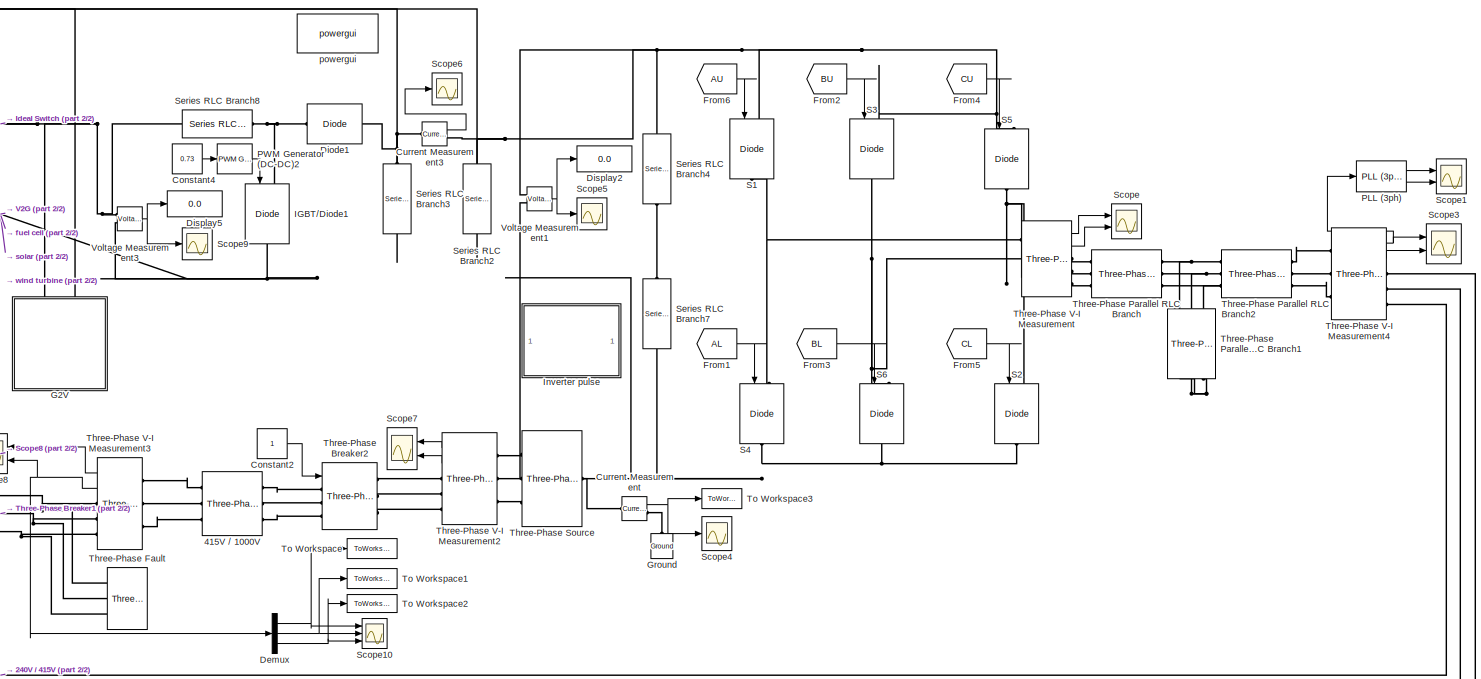
[diagram: root canvas - part 1/2, right side, full height]
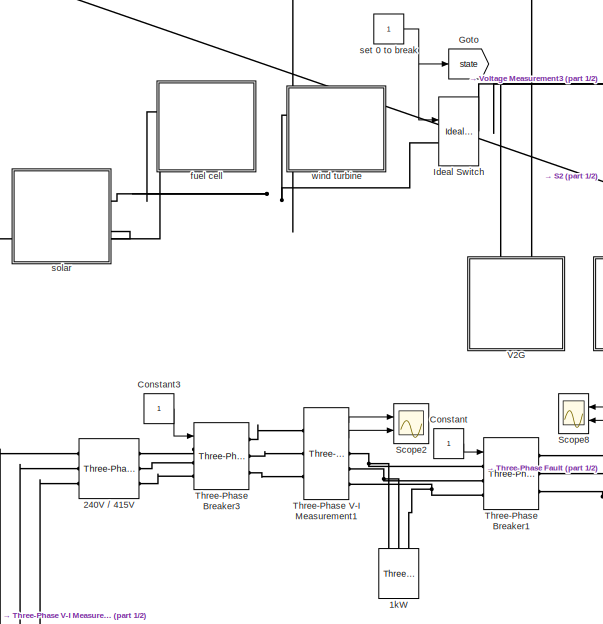
[diagram: root canvas - part 2/2, left side, full height]
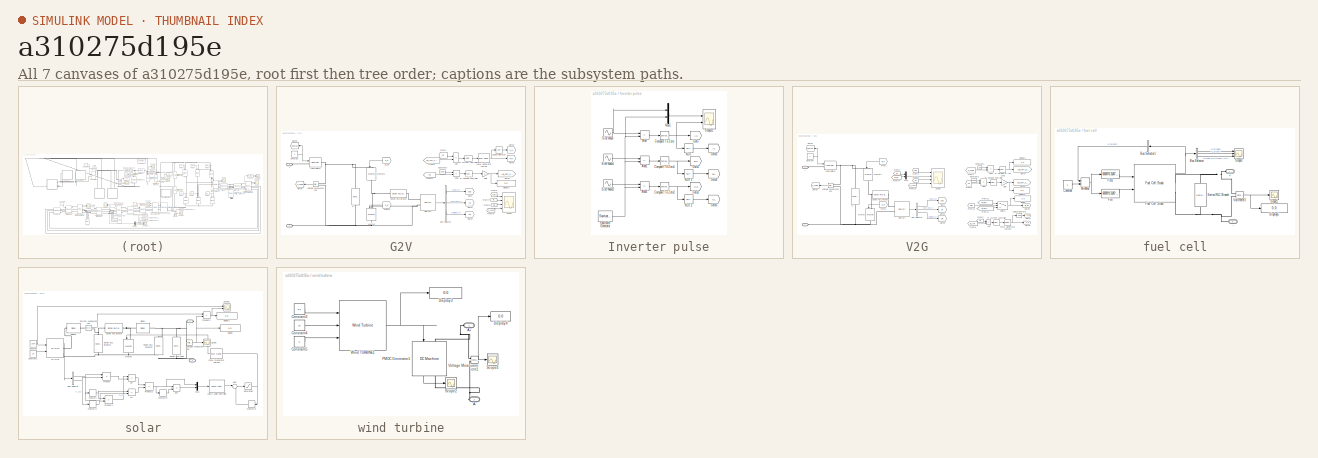
[diagram: thumbnail index - all 7 canvases of the model, root first then tree order]
MODEL slx_a310275d195e
KIND model
CONFIG AbsTol = auto
CONFIG EnableMultiTasking = off
CONFIG FixedStep = auto
CONFIG MaxStep = auto
CONFIG MinStep = auto
CONFIG RelTol = 1e-3
CONFIG SampleTimeConstraint = Unconstrained
CONFIG Solver = ode23tb
CONFIG SolverName = ode23tb
CONFIG StartTime = 0.0
CONFIG StopTime = 1
WORKSPACE source: mxarray member
WORKSPACE Var = 0
BLOCK [Reference]  240V // 415V  REF=powerlib/Elements/Three-Phase
Transformer
(Two Windings)
  AttributesFormatString = \n
  Ports = [0, 0, 0, 0, 0, 3, 3]
  SourceBlock = powerlib/Elements/Three-Phase\nTransformer\n(Two Windings)
  SourceProductBaseCode = PS
  SourceType = Three-Phase Transformer (Two Windings)
BLOCK [Reference]  415V // 1000V  REF=powerlib/Elements/Three-Phase
Transformer
(Two Windings)
  AttributesFormatString = \n
  Ports = [0, 0, 0, 0, 0, 3, 3]
  SourceBlock = powerlib/Elements/Three-Phase\nTransformer\n(Two Windings)
  SourceProductBaseCode = PS
  SourceType = Three-Phase Transformer (Two Windings)
BLOCK [Reference] 1kW  REF=powerlib/Elements/Three-Phase
Series RLC Load
  AttributesFormatString = \n
  NameLocation = right
  Ports = [0, 0, 0, 0, 0, 3]
  SourceBlock = powerlib/Elements/Three-Phase\nSeries RLC Load
  SourceProductBaseCode = PS
  SourceType = Three-Phase Series RLC Load
BLOCK [Constant] Constant
BLOCK [Constant] Constant2
BLOCK [Constant] Constant3
BLOCK [Constant] Constant4
  Value = 0.73
BLOCK [Reference] Current Measurement  REF=powerlib/Measurements/Current Measurement
  Ports = [0, 1, 0, 0, 0, 1, 1]
  SourceBlock = powerlib/Measurements/Current Measurement
  SourceProductBaseCode = PS
  SourceType = Current Measurement
  UserDataPersistent = on
BLOCK [Reference] Current Measurement3  REF=powerlib/Measurements/Current Measurement
  Ports = [0, 1, 0, 0, 0, 1, 1]
  SourceBlock = powerlib/Measurements/Current Measurement
  SourceProductBaseCode = PS
  SourceType = Current Measurement
BLOCK [Demux] Demux
  Outputs = 3
  Ports = [1, 3]
BLOCK [Reference] Diode1  REF=powerlib/Power
Electronics/Diode
  Ports = [0, 0, 0, 0, 0, 1, 1]
  SourceBlock = powerlib/Power\nElectronics/Diode
  SourceProductBaseCode = PS
  SourceType = Diode
BLOCK [Display] Display2
  Decimation = 1
  Ports = [1]
BLOCK [Display] Display5
  Decimation = 1
  Ports = [1]
BLOCK [From] From1
  GotoTag = AL
BLOCK [From] From2
  GotoTag = BU
BLOCK [From] From3
  GotoTag = BL
BLOCK [From] From4
  GotoTag = CU
BLOCK [From] From5
  GotoTag = CL
BLOCK [From] From6
  GotoTag = AU
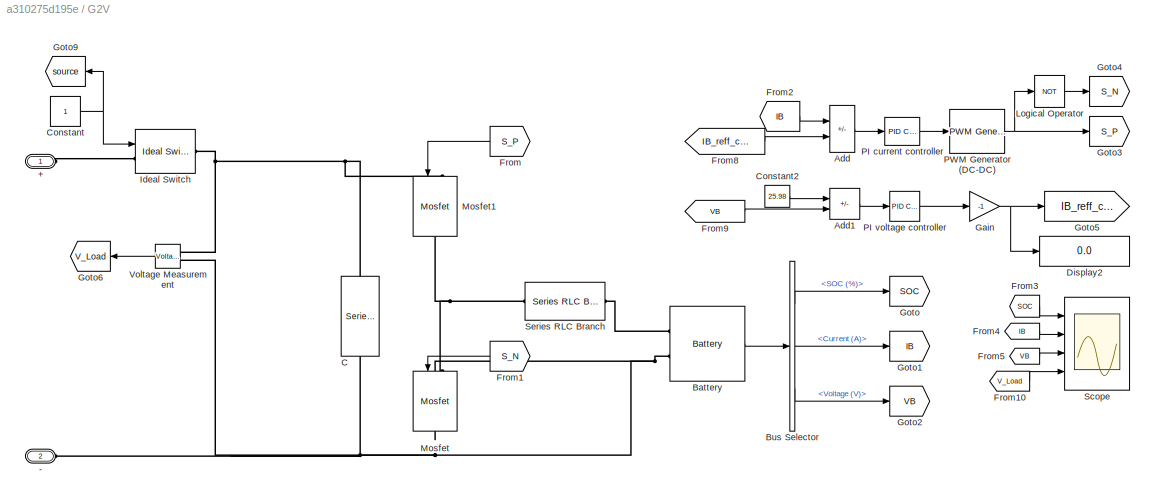
BLOCK [SubSystem] G2V
  NameLocation = left
  Ports = [0, 0, 0, 0, 0, 2]
  RequestExecContextInheritance = off
BLOCK [PMIOPort] G2V/+
  Side = Left
BLOCK [PMIOPort] G2V/-
  Port = 2
  Side = Left
BLOCK [Sum] G2V/Add
  IconShape = rectangular
  Inputs = +-
  Ports = [2, 1]
BLOCK [Sum] G2V/Add1
  IconShape = rectangular
  Inputs = +-
  Ports = [2, 1]
BLOCK [Reference] G2V/Battery  REF=electricdrivelib/Extra Sources/Battery
  Ports = [0, 1, 0, 0, 0, 2]
  SourceBlock = electricdrivelib/Extra Sources/Battery
  SourceProductBaseCode = PS
  SourceType = Battery
BLOCK [BusSelector] G2V/Bus Selector
  OutputSignals = SOC (%),Current (A),Voltage (V)
  Ports = [1, 3]
BLOCK [Reference] G2V/C  REF=powerlib/Elements/Series RLC Branch
  NameLocation = right
  Ports = [0, 0, 0, 0, 0, 1, 1]
  SourceBlock = powerlib/Elements/Series RLC Branch
  SourceProductBaseCode = PS
  SourceType = Series RLC Branch
BLOCK [Constant] G2V/Constant
BLOCK [Constant] G2V/Constant2
  Value = 25.98
BLOCK [Display] G2V/Display2
  Decimation = 1
  Ports = [1]
BLOCK [From] G2V/From
  GotoTag = S_P
BLOCK [From] G2V/From1
  GotoTag = S_N
BLOCK [From] G2V/From10
  GotoTag = V_Load
BLOCK [From] G2V/From2
  GotoTag = IB
BLOCK [From] G2V/From3
  GotoTag = SOC
BLOCK [From] G2V/From4
  GotoTag = IB
BLOCK [From] G2V/From5
  GotoTag = VB
BLOCK [From] G2V/From8
  GotoTag = IB_reff_charge
BLOCK [From] G2V/From9
  GotoTag = VB
BLOCK [Gain] G2V/Gain
  Gain = -1
BLOCK [Goto] G2V/Goto
  GotoTag = SOC
BLOCK [Goto] G2V/Goto1
  GotoTag = IB
BLOCK [Goto] G2V/Goto2
  GotoTag = VB
BLOCK [Goto] G2V/Goto3
  GotoTag = S_P
BLOCK [Goto] G2V/Goto4
  GotoTag = S_N
BLOCK [Goto] G2V/Goto5
  GotoTag = IB_reff_charge
  NameLocation = right
BLOCK [Goto] G2V/Goto6
  GotoTag = V_Load
BLOCK [Goto] G2V/Goto9
  GotoTag = source
BLOCK [Reference] G2V/Ideal Switch  REF=powerlib/Power
Electronics/Ideal Switch
  Ports = [1, 0, 0, 0, 0, 1, 1]
  SourceBlock = powerlib/Power\nElectronics/Ideal Switch
  SourceProductBaseCode = PS
  SourceType = Ideal Switch
BLOCK [Logic] G2V/Logical Operator
  AllPortsSameDT = off
  Operator = NOT
  OutDataTypeStr = boolean
  Ports = [1, 1]
BLOCK [Reference] G2V/Mosfet  REF=powerlib/Power
Electronics/Mosfet
  NameLocation = left
  Ports = [1, 0, 0, 0, 0, 1, 1]
  SourceBlock = powerlib/Power\nElectronics/Mosfet
  SourceProductBaseCode = PS
  SourceType = Mosfet
BLOCK [Reference] G2V/Mosfet1  REF=powerlib/Power
Electronics/Mosfet
  NameLocation = left
  Ports = [1, 0, 0, 0, 0, 1, 1]
  SourceBlock = powerlib/Power\nElectronics/Mosfet
  SourceProductBaseCode = PS
  SourceType = Mosfet
BLOCK [Reference] G2V/PI current controller  REF=simulink/Continuous/PID Controller
  Ports = [1, 1]
  SourceBlock = simulink/Continuous/PID Controller
  SourceProductBaseCode = SL
  SourceType = PID 1dof
BLOCK [Reference] G2V/PI voltage controller  REF=simulink/Continuous/PID Controller
  Ports = [1, 1]
  SourceBlock = simulink/Continuous/PID Controller
  SourceProductBaseCode = SL
  SourceType = PID 1dof
BLOCK [Reference] G2V/PWM Generator (DC-DC)  REF=powerlib_meascontrol/Pulse & Signal
Generators/PWM Generator
(DC-DC)
  Ports = [1, 1]
  SourceBlock = powerlib_meascontrol/Pulse & Signal\nGenerators/PWM Generator\n(DC-DC)
  SourceProductBaseCode = PS
  SourceType = PWM Generator (DC-DC)
BLOCK [Scope] G2V/Scope
  Floating = off
  NumInputPorts = 4
  Ports = [4]
  ScopeSpecificationString = Simulink.scopes.TimeScopeBlockCfg('CurrentConfiguration', extmgr.ConfigurationSet(extmgr.Configuration('Core','General UI',true,'FigureColor',[1 1 1]),extmgr.Configuration('Core','Source UI',true),extmgr.Configuration('Sources','WiredSimulink',true,'DataLoggingVariableName','ScopeData1'),extmgr.Configuration('Visuals','Time Domain',true,'SerializedDisplays',{struct('MinYLimReal','49.99934','MaxYLi...<+7266ch>
BLOCK [Reference] G2V/Series RLC Branch  REF=powerlib/Elements/Series RLC Branch
  NameLocation = top
  Ports = [0, 0, 0, 0, 0, 1, 1]
  SourceBlock = powerlib/Elements/Series RLC Branch
  SourceProductBaseCode = PS
  SourceType = Series RLC Branch
BLOCK [Reference] G2V/Voltage Measurement  REF=powerlib/Measurements/Voltage Measurement
  Ports = [0, 1, 0, 0, 0, 2]
  SourceBlock = powerlib/Measurements/Voltage Measurement
  SourceProductBaseCode = PS
  SourceType = Voltage Measurement
  UserDataPersistent = on
BLOCK [Goto] Goto
  GotoTag = state
  TagVisibility = global
BLOCK [Reference] Ground  REF=powerlib/Elements/Ground
  NameLocation = right
  Ports = [0, 0, 0, 0, 0, 1]
  SourceBlock = powerlib/Elements/Ground
  SourceProductBaseCode = PS
  SourceType = Ground
BLOCK [Reference] IGBT//Diode1  REF=powerlib/Power
Electronics/IGBT//Diode
  NameLocation = left
  Ports = [1, 0, 0, 0, 0, 1, 1]
  SourceBlock = powerlib/Power\nElectronics/IGBT//Diode
  SourceProductBaseCode = PS
  SourceType = IGBT/Diode
BLOCK [Reference] Ideal Switch  REF=powerlib/Power
Electronics/Ideal Switch
  Ports = [1, 0, 0, 0, 0, 1, 1]
  SourceBlock = powerlib/Power\nElectronics/Ideal Switch
  SourceProductBaseCode = PS
  SourceType = Ideal Switch
BLOCK [SubSystem] Inverter pulse
  Ports = []
  RequestExecContextInheritance = off
BLOCK [Sum] Inverter pulse/Add
  IconShape = rectangular
  Inputs = +-
  Ports = [2, 1]
BLOCK [Sum] Inverter pulse/Add1
  IconShape = rectangular
  Inputs = +-
  Ports = [2, 1]
BLOCK [Sum] Inverter pulse/Add2
  IconShape = rectangular
  Inputs = +-
  Ports = [2, 1]
BLOCK [Reference] Inverter pulse/Compare To Zero  REF=simulink/Logic and Bit
Operations/Compare
To Zero
  Ports = [1, 1]
  SourceBlock = simulink/Logic and Bit\nOperations/Compare\nTo Zero
  SourceProductBaseCode = SL
  SourceType = Compare To Zero
BLOCK [Reference] Inverter pulse/Compare To Zero1  REF=simulink/Logic and Bit
Operations/Compare
To Zero
  Ports = [1, 1]
  SourceBlock = simulink/Logic and Bit\nOperations/Compare\nTo Zero
  SourceProductBaseCode = SL
  SourceType = Compare To Zero
BLOCK [Reference] Inverter pulse/Compare To Zero2  REF=simulink/Logic and Bit
Operations/Compare
To Zero
  Ports = [1, 1]
  SourceBlock = simulink/Logic and Bit\nOperations/Compare\nTo Zero
  SourceProductBaseCode = SL
  SourceType = Compare To Zero
BLOCK [Goto] Inverter pulse/Goto
  GotoTag = AU
BLOCK [Goto] Inverter pulse/Goto1
  GotoTag = BU
BLOCK [Goto] Inverter pulse/Goto2
  GotoTag = CU
BLOCK [Goto] Inverter pulse/Goto3
  GotoTag = AL
BLOCK [Goto] Inverter pulse/Goto4
  GotoTag = BL
BLOCK [Goto] Inverter pulse/Goto5
  GotoTag = CL
BLOCK [Mux] Inverter pulse/Mux1
  DisplayOption = bar
  Inputs = 2
  Ports = [2, 1]
BLOCK [Logic] Inverter pulse/NOT
  AllPortsSameDT = off
  Operator = NOT
  OutDataTypeStr = boolean
  Ports = [1, 1]
BLOCK [Logic] Inverter pulse/NOT1
  AllPortsSameDT = off
  Operator = NOT
  OutDataTypeStr = boolean
  Ports = [1, 1]
BLOCK [Logic] Inverter pulse/NOT2
  AllPortsSameDT = off
  Operator = NOT
  OutDataTypeStr = boolean
  Ports = [1, 1]
BLOCK [Reference] Inverter pulse/Sawtooth Generator  REF=powerlib_meascontrol/Pulse & Signal
Generators/Sawtooth
Generator
  Ports = [0, 1]
  SourceBlock = powerlib_meascontrol/Pulse & Signal\nGenerators/Sawtooth\nGenerator
  SourceProductBaseCode = PS
  SourceType = Sawtooth Generator
BLOCK [Scope] Inverter pulse/Scope11
  Floating = off
  NumInputPorts = 2
  Ports = [2]
  ScopeSpecificationString = Simulink.scopes.TimeScopeBlockCfg('CurrentConfiguration', extmgr.ConfigurationSet(extmgr.Configuration('Core','General UI',true,'FigureColor',[1 1 1]),extmgr.Configuration('Core','Source UI',true),extmgr.Configuration('Sources','WiredSimulink',true,'DataLoggingVariableName','ScopeData2'),extmgr.Configuration('Visuals','Time Domain',true,'SerializedDisplays',{struct('MinYLimReal','-1.25','MaxYLimRe...<+2957ch>
BLOCK [Sin] Inverter pulse/Sine Wave
  Frequency = 2*pi*50
  Ports = [0, 1]
  SampleTime = 0
BLOCK [Sin] Inverter pulse/Sine Wave1
  Frequency = 2*pi*50
  Phase = 2*pi/3
  Ports = [0, 1]
  SampleTime = 0
BLOCK [Sin] Inverter pulse/Sine Wave2
  Frequency = 2*pi*50
  Phase = 4*pi/3
  Ports = [0, 1]
  SampleTime = 0
BLOCK [Reference] PLL (3ph)  REF=powerlib_meascontrol/PLL/PLL
(3ph)
  Ports = [1, 2]
  SourceBlock = powerlib_meascontrol/PLL/PLL\n(3ph)
  SourceProductBaseCode = PS
  SourceType = PLL (3ph)
BLOCK [Reference] PWM Generator (DC-DC)2  REF=powerlib_meascontrol/Pulse & Signal
Generators/PWM Generator
(DC-DC)
  Ports = [1, 1]
  SourceBlock = powerlib_meascontrol/Pulse & Signal\nGenerators/PWM Generator\n(DC-DC)
  SourceProductBaseCode = PS
  SourceType = PWM Generator (DC-DC)
BLOCK [Reference] S1  REF=powerlib/Power
Electronics/IGBT//Diode
  NameLocation = left
  Ports = [1, 0, 0, 0, 0, 1, 1]
  SourceBlock = powerlib/Power\nElectronics/IGBT//Diode
  SourceProductBaseCode = PS
  SourceType = IGBT/Diode
BLOCK [Reference] S2  REF=powerlib/Power
Electronics/IGBT//Diode
  NameLocation = left
  Ports = [1, 0, 0, 0, 0, 1, 1]
  SourceBlock = powerlib/Power\nElectronics/IGBT//Diode
  SourceProductBaseCode = PS
  SourceType = IGBT/Diode
BLOCK [Reference] S3  REF=powerlib/Power
Electronics/IGBT//Diode
  NameLocation = left
  Ports = [1, 0, 0, 0, 0, 1, 1]
  SourceBlock = powerlib/Power\nElectronics/IGBT//Diode
  SourceProductBaseCode = PS
  SourceType = IGBT/Diode
BLOCK [Reference] S4  REF=powerlib/Power
Electronics/IGBT//Diode
  NameLocation = left
  Ports = [1, 0, 0, 0, 0, 1, 1]
  SourceBlock = powerlib/Power\nElectronics/IGBT//Diode
  SourceProductBaseCode = PS
  SourceType = IGBT/Diode
BLOCK [Reference] S5  REF=powerlib/Power
Electronics/IGBT//Diode
  NameLocation = left
  Ports = [1, 0, 0, 0, 0, 1, 1]
  SourceBlock = powerlib/Power\nElectronics/IGBT//Diode
  SourceProductBaseCode = PS
  SourceType = IGBT/Diode
BLOCK [Reference] S6  REF=powerlib/Power
Electronics/IGBT//Diode
  NameLocation = left
  Ports = [1, 0, 0, 0, 0, 1, 1]
  SourceBlock = powerlib/Power\nElectronics/IGBT//Diode
  SourceProductBaseCode = PS
  SourceType = IGBT/Diode
BLOCK [Scope] Scope
  Floating = off
  NumInputPorts = 2
  Ports = [2]
  ScopeSpecificationString = Simulink.scopes.TimeScopeBlockCfg('CurrentConfiguration', extmgr.ConfigurationSet(extmgr.Configuration('Core','General UI',true,'FigureColor',[1 1 1]),extmgr.Configuration('Core','Source UI',true),extmgr.Configuration('Sources','WiredSimulink',true,'DataLoggingVariableName','ScopeData1'),extmgr.Configuration('Visuals','Time Domain',true,'SerializedDisplays',{struct('MinYLimReal','-196.46016','MaxY...<+3598ch>
BLOCK [Scope] Scope1
  Floating = off
  NumInputPorts = 2
  Ports = [2]
  ScopeSpecificationString = Simulink.scopes.TimeScopeBlockCfg('CurrentConfiguration', extmgr.ConfigurationSet(extmgr.Configuration('Core','General UI',true,'FigureColor',[1 1 1]),extmgr.Configuration('Core','Source UI',true),extmgr.Configuration('Sources','WiredSimulink',true,'DataLoggingVariableName','ScopeData1'),extmgr.Configuration('Visuals','Time Domain',true,'SerializedDisplays',{struct('MinYLimReal','49.68185','MaxYLi...<+3348ch>
BLOCK [Scope] Scope10
  Floating = off
  NumInputPorts = 3
  Ports = [3]
  ScopeSpecificationString = Simulink.scopes.TimeScopeBlockCfg('CurrentConfiguration', extmgr.ConfigurationSet(extmgr.Configuration('Core','General UI',true),extmgr.Configuration('Core','Source UI',true),extmgr.Configuration('Sources','WiredSimulink',true,'DataLoggingSaveFormat','Array','DataLoggingDecimation','1','DataLoggingDecimateData',true,'DataLoggingVariableName','ScopeData10'),extmgr.Configuration('Visuals','Time Doma...<+1695ch>
BLOCK [Scope] Scope2
  Floating = off
  NumInputPorts = 2
  Ports = [2]
  ScopeSpecificationString = Simulink.scopes.TimeScopeBlockCfg('CurrentConfiguration', extmgr.ConfigurationSet(extmgr.Configuration('Core','General UI',true,'FigureColor',[1 1 1]),extmgr.Configuration('Core','Source UI',true),extmgr.Configuration('Sources','WiredSimulink',true,'DataLoggingVariableName','ScopeData2'),extmgr.Configuration('Visuals','Time Domain',true,'SerializedDisplays',{struct('MinYLimReal','-353.4442','MaxYL...<+3599ch>
BLOCK [Scope] Scope3
  Floating = off
  NumInputPorts = 2
  Ports = [2]
  ScopeSpecificationString = Simulink.scopes.TimeScopeBlockCfg('CurrentConfiguration', extmgr.ConfigurationSet(extmgr.Configuration('Core','General UI',true,'FigureColor',[1 1 1]),extmgr.Configuration('Core','Source UI',true),extmgr.Configuration('Sources','WiredSimulink',true,'DataLoggingVariableName','ScopeData3'),extmgr.Configuration('Visuals','Time Domain',true,'SerializedDisplays',{struct('MinYLimReal','-246.00509','MaxY...<+3601ch>
BLOCK [Scope] Scope4
  Floating = off
  NumInputPorts = 1
  Ports = [1]
  ScopeSpecificationString = Simulink.scopes.TimeScopeBlockCfg('CurrentConfiguration', extmgr.ConfigurationSet(extmgr.Configuration('Core','General UI',true),extmgr.Configuration('Core','Source UI',true),extmgr.Configuration('Sources','WiredSimulink',true,'DataLoggingSaveFormat','Array','DataLoggingDecimation','1','DataLoggingDecimateData',true,'DataLoggingVariableName','ScopeData9'),extmgr.Configuration('Visuals','Time Domai...<+1728ch>
BLOCK [Scope] Scope5
  Floating = off
  NumInputPorts = 1
  Ports = [1]
  ScopeSpecificationString = Simulink.scopes.TimeScopeBlockCfg('CurrentConfiguration', extmgr.ConfigurationSet(extmgr.Configuration('Core','General UI',true),extmgr.Configuration('Core','Source UI',true),extmgr.Configuration('Sources','WiredSimulink',true,'DataLoggingVariableName','ScopeData4','DataLoggingSaveFormat','StructureWithTime','DataLoggingDecimation','1','DataLoggingDecimateData',true),extmgr.Configuration('Visuals'...<+1727ch>
BLOCK [Scope] Scope6
  Floating = off
  NumInputPorts = 1
  Ports = [1]
  ScopeSpecificationString = Simulink.scopes.TimeScopeBlockCfg('CurrentConfiguration', extmgr.ConfigurationSet(extmgr.Configuration('Core','General UI',true),extmgr.Configuration('Core','Source UI',true),extmgr.Configuration('Sources','WiredSimulink',true,'DataLoggingVariableName','ScopeData5','DataLoggingSaveFormat','StructureWithTime','DataLoggingDecimation','1','DataLoggingDecimateData',true),extmgr.Configuration('Visuals'...<+1705ch>
BLOCK [Scope] Scope7
  Floating = off
  NumInputPorts = 2
  Ports = [2]
  ScopeSpecificationString = Simulink.scopes.TimeScopeBlockCfg('CurrentConfiguration', extmgr.ConfigurationSet(extmgr.Configuration('Core','General UI',true,'FigureColor',[1 1 1]),extmgr.Configuration('Core','Source UI',true),extmgr.Configuration('Sources','WiredSimulink',true,'DataLoggingVariableName','ScopeData6'),extmgr.Configuration('Visuals','Time Domain',true,'SerializedDisplays',{struct('MinYLimReal','-17135.44748','Ma...<+3615ch>
BLOCK [Scope] Scope8
  Floating = off
  NumInputPorts = 2
  Ports = [2]
  ScopeSpecificationString = Simulink.scopes.TimeScopeBlockCfg('CurrentConfiguration', extmgr.ConfigurationSet(extmgr.Configuration('Core','General UI',true),extmgr.Configuration('Core','Source UI',true),extmgr.Configuration('Sources','WiredSimulink',true,'DataLoggingVariableName','ScopeData7'),extmgr.Configuration('Visuals','Time Domain',true,'SerializedDisplays',{struct('MinYLimReal','-423.2539','MaxYLimReal','423.3879','YL...<+2852ch>
BLOCK [Scope] Scope9
  Floating = off
  NumInputPorts = 1
  Ports = [1]
  ScopeSpecificationString = Simulink.scopes.TimeScopeBlockCfg('CurrentConfiguration', extmgr.ConfigurationSet(extmgr.Configuration('Core','General UI',true),extmgr.Configuration('Core','Source UI',true),extmgr.Configuration('Sources','WiredSimulink',true,'DataLoggingVariableName','ScopeData8','DataLoggingSaveFormat','StructureWithTime','DataLoggingDecimation','1','DataLoggingDecimateData',true),extmgr.Configuration('Visuals'...<+1751ch>
BLOCK [Reference] Series RLC Branch2  REF=powerlib/Elements/Series RLC Branch
  NameLocation = left
  Ports = [0, 0, 0, 0, 0, 1, 1]
  SourceBlock = powerlib/Elements/Series RLC Branch
  SourceProductBaseCode = PS
  SourceType = Series RLC Branch
BLOCK [Reference] Series RLC Branch3  REF=powerlib/Elements/Series RLC Branch
  NameLocation = left
  Ports = [0, 0, 0, 0, 0, 1, 1]
  SourceBlock = powerlib/Elements/Series RLC Branch
  SourceProductBaseCode = PS
  SourceType = Series RLC Branch
BLOCK [Reference] Series RLC Branch4  REF=powerlib/Elements/Series RLC Branch
  NameLocation = left
  Ports = [0, 0, 0, 0, 0, 1, 1]
  SourceBlock = powerlib/Elements/Series RLC Branch
  SourceProductBaseCode = PS
  SourceType = Series RLC Branch
BLOCK [Reference] Series RLC Branch7  REF=powerlib/Elements/Series RLC Branch
  NameLocation = left
  Ports = [0, 0, 0, 0, 0, 1, 1]
  SourceBlock = powerlib/Elements/Series RLC Branch
  SourceProductBaseCode = PS
  SourceType = Series RLC Branch
BLOCK [Reference] Series RLC Branch8  REF=powerlib/Elements/Series RLC Branch
  NameLocation = top
  Ports = [0, 0, 0, 0, 0, 1, 1]
  SourceBlock = powerlib/Elements/Series RLC Branch
  SourceProductBaseCode = PS
  SourceType = Series RLC Branch
BLOCK [Reference] Three-Phase Breaker1  REF=powerlib/Elements/Three-Phase Breaker
  Ports = [1, 0, 0, 0, 0, 3, 3]
  SourceBlock = powerlib/Elements/Three-Phase Breaker
  SourceProductBaseCode = PS
  SourceType = Three-Phase Breaker
BLOCK [Reference] Three-Phase Breaker2  REF=powerlib/Elements/Three-Phase Breaker
  Ports = [1, 0, 0, 0, 0, 3, 3]
  SourceBlock = powerlib/Elements/Three-Phase Breaker
  SourceProductBaseCode = PS
  SourceType = Three-Phase Breaker
BLOCK [Reference] Three-Phase Breaker3  REF=powerlib/Elements/Three-Phase Breaker
  Ports = [1, 0, 0, 0, 0, 3, 3]
  SourceBlock = powerlib/Elements/Three-Phase Breaker
  SourceProductBaseCode = PS
  SourceType = Three-Phase Breaker
BLOCK [Reference] Three-Phase Fault  REF=powerlib/Elements/Three-Phase Fault
  Ports = [0, 0, 0, 0, 0, 3]
  SourceBlock = powerlib/Elements/Three-Phase Fault
  SourceProductBaseCode = PS
  SourceType = Three-Phase Fault
BLOCK [Reference] Three-Phase Parallel RLC Branch  REF=powerlib/Elements/Three-Phase
Parallel RLC Branch
  AttributesFormatString = \n
  Ports = [0, 0, 0, 0, 0, 3, 3]
  SourceBlock = powerlib/Elements/Three-Phase\nParallel RLC Branch
  SourceProductBaseCode = PS
  SourceType = Three-Phase Parallel RLC Branch
BLOCK [Reference] Three-Phase Parallel RLC Branch1  REF=powerlib/Elements/Three-Phase
Parallel RLC Branch
  AttributesFormatString = \n
  NameLocation = left
  Ports = [0, 0, 0, 0, 0, 3, 3]
  SourceBlock = powerlib/Elements/Three-Phase\nParallel RLC Branch
  SourceProductBaseCode = PS
  SourceType = Three-Phase Parallel RLC Branch
BLOCK [Reference] Three-Phase Parallel RLC Branch2  REF=powerlib/Elements/Three-Phase
Parallel RLC Branch
  AttributesFormatString = \n
  Ports = [0, 0, 0, 0, 0, 3, 3]
  SourceBlock = powerlib/Elements/Three-Phase\nParallel RLC Branch
  SourceProductBaseCode = PS
  SourceType = Three-Phase Parallel RLC Branch
BLOCK [Reference] Three-Phase Source  REF=powerlib/Electrical
Sources/Three-Phase Source
  Ports = [0, 0, 0, 0, 0, 1, 3]
  SourceBlock = powerlib/Electrical\nSources/Three-Phase Source
  SourceProductBaseCode = PS
  SourceType = Three-Phase Source
BLOCK [Reference] Three-Phase V-I Measurement  REF=powerlib/Measurements/Three-Phase
V-I Measurement
  Ports = [0, 2, 0, 0, 0, 3, 3]
  SourceBlock = powerlib/Measurements/Three-Phase\nV-I Measurement
  SourceProductBaseCode = PS
  SourceType = Three-Phase VI Measurement
BLOCK [Reference] Three-Phase V-I Measurement1  REF=powerlib/Measurements/Three-Phase
V-I Measurement
  Ports = [0, 2, 0, 0, 0, 3, 3]
  SourceBlock = powerlib/Measurements/Three-Phase\nV-I Measurement
  SourceProductBaseCode = PS
  SourceType = Three-Phase VI Measurement
BLOCK [Reference] Three-Phase V-I Measurement2  REF=powerlib/Measurements/Three-Phase
V-I Measurement
  Ports = [0, 2, 0, 0, 0, 3, 3]
  SourceBlock = powerlib/Measurements/Three-Phase\nV-I Measurement
  SourceProductBaseCode = PS
  SourceType = Three-Phase VI Measurement
BLOCK [Reference] Three-Phase V-I Measurement3  REF=powerlib/Measurements/Three-Phase
V-I Measurement
  Ports = [0, 2, 0, 0, 0, 3, 3]
  SourceBlock = powerlib/Measurements/Three-Phase\nV-I Measurement
  SourceProductBaseCode = PS
  SourceType = Three-Phase VI Measurement
BLOCK [Reference] Three-Phase V-I Measurement4  REF=powerlib/Measurements/Three-Phase
V-I Measurement
  Ports = [0, 2, 0, 0, 0, 3, 3]
  SourceBlock = powerlib/Measurements/Three-Phase\nV-I Measurement
  SourceProductBaseCode = PS
  SourceType = Three-Phase VI Measurement
BLOCK [ToWorkspace] To Workspace
  FixptAsFi = on
  MaxDataPoints = inf
  Ports = [1]
  SampleTime = -1
  VariableName = c1
BLOCK [ToWorkspace] To Workspace1
  FixptAsFi = on
  MaxDataPoints = inf
  Ports = [1]
  SampleTime = -1
  VariableName = c2
BLOCK [ToWorkspace] To Workspace2
  FixptAsFi = on
  MaxDataPoints = inf
  Ports = [1]
  SampleTime = -1
  VariableName = c3
BLOCK [ToWorkspace] To Workspace3
  FixptAsFi = on
  MaxDataPoints = inf
  Ports = [1]
  SampleTime = -1
  VariableName = c4
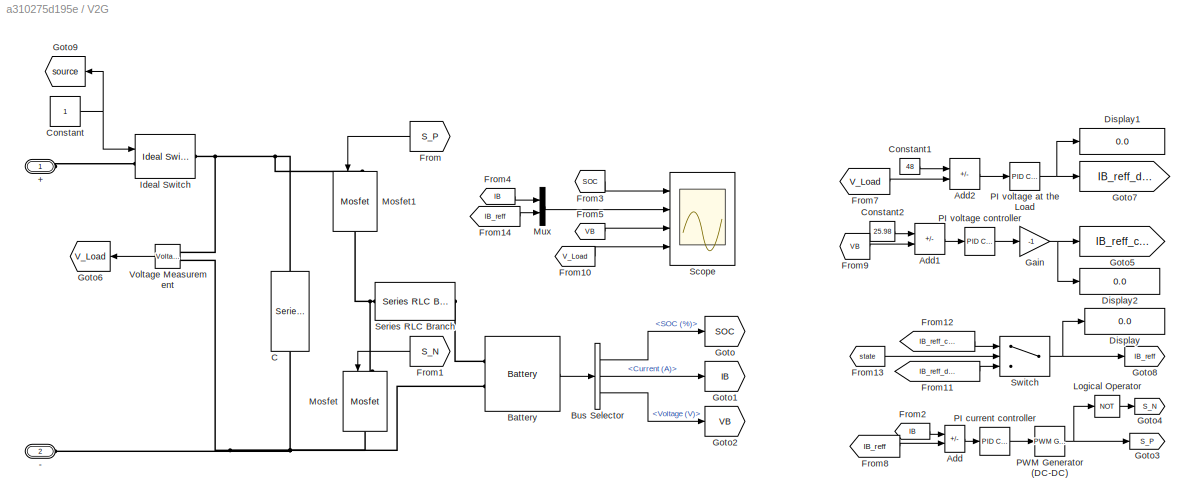
BLOCK [SubSystem] V2G
  NameLocation = left
  Ports = [0, 0, 0, 0, 0, 2]
  RequestExecContextInheritance = off
BLOCK [PMIOPort] V2G/+
  Side = Left
BLOCK [PMIOPort] V2G/-
  Port = 2
  Side = Left
BLOCK [Sum] V2G/Add
  IconShape = rectangular
  Inputs = +-
  Ports = [2, 1]
BLOCK [Sum] V2G/Add1
  IconShape = rectangular
  Inputs = +-
  Ports = [2, 1]
BLOCK [Sum] V2G/Add2
  IconShape = rectangular
  Inputs = +-
  Ports = [2, 1]
BLOCK [Reference] V2G/Battery  REF=electricdrivelib/Extra Sources/Battery
  Ports = [0, 1, 0, 0, 0, 2]
  SourceBlock = electricdrivelib/Extra Sources/Battery
  SourceProductBaseCode = PS
  SourceType = Battery
BLOCK [BusSelector] V2G/Bus Selector
  OutputSignals = SOC (%),Current (A),Voltage (V)
  Ports = [1, 3]
BLOCK [Reference] V2G/C  REF=powerlib/Elements/Series RLC Branch
  NameLocation = right
  Ports = [0, 0, 0, 0, 0, 1, 1]
  SourceBlock = powerlib/Elements/Series RLC Branch
  SourceProductBaseCode = PS
  SourceType = Series RLC Branch
BLOCK [Constant] V2G/Constant
BLOCK [Constant] V2G/Constant1
  Value = 48
BLOCK [Constant] V2G/Constant2
  Value = 25.98
BLOCK [Display] V2G/Display
  Decimation = 1
  Ports = [1]
BLOCK [Display] V2G/Display1
  Decimation = 1
  Ports = [1]
BLOCK [Display] V2G/Display2
  Decimation = 1
  Ports = [1]
BLOCK [From] V2G/From
  GotoTag = S_P
BLOCK [From] V2G/From1
  GotoTag = S_N
BLOCK [From] V2G/From10
  GotoTag = V_Load
BLOCK [From] V2G/From11
  GotoTag = IB_reff_discharge
BLOCK [From] V2G/From12
  GotoTag = IB_reff_charge
BLOCK [From] V2G/From13
  GotoTag = state
  TagVisibility = global
BLOCK [From] V2G/From14
  GotoTag = IB_reff
BLOCK [From] V2G/From2
  GotoTag = IB
BLOCK [From] V2G/From3
  GotoTag = SOC
BLOCK [From] V2G/From4
  GotoTag = IB
BLOCK [From] V2G/From5
  GotoTag = VB
BLOCK [From] V2G/From7
  GotoTag = V_Load
BLOCK [From] V2G/From8
  GotoTag = IB_reff
BLOCK [From] V2G/From9
  GotoTag = VB
BLOCK [Gain] V2G/Gain
  Gain = -1
BLOCK [Goto] V2G/Goto
  GotoTag = SOC
BLOCK [Goto] V2G/Goto1
  GotoTag = IB
BLOCK [Goto] V2G/Goto2
  GotoTag = VB
BLOCK [Goto] V2G/Goto3
  GotoTag = S_P
BLOCK [Goto] V2G/Goto4
  GotoTag = S_N
BLOCK [Goto] V2G/Goto5
  GotoTag = IB_reff_charge
BLOCK [Goto] V2G/Goto6
  GotoTag = V_Load
BLOCK [Goto] V2G/Goto7
  GotoTag = IB_reff_discharge
BLOCK [Goto] V2G/Goto8
  GotoTag = IB_reff
BLOCK [Goto] V2G/Goto9
  GotoTag = source
BLOCK [Reference] V2G/Ideal Switch  REF=powerlib/Power
Electronics/Ideal Switch
  Ports = [1, 0, 0, 0, 0, 1, 1]
  SourceBlock = powerlib/Power\nElectronics/Ideal Switch
  SourceProductBaseCode = PS
  SourceType = Ideal Switch
BLOCK [Logic] V2G/Logical Operator
  AllPortsSameDT = off
  Operator = NOT
  OutDataTypeStr = boolean
  Ports = [1, 1]
BLOCK [Reference] V2G/Mosfet  REF=powerlib/Power
Electronics/Mosfet
  NameLocation = left
  Ports = [1, 0, 0, 0, 0, 1, 1]
  SourceBlock = powerlib/Power\nElectronics/Mosfet
  SourceProductBaseCode = PS
  SourceType = Mosfet
BLOCK [Reference] V2G/Mosfet1  REF=powerlib/Power
Electronics/Mosfet
  NameLocation = left
  Ports = [1, 0, 0, 0, 0, 1, 1]
  SourceBlock = powerlib/Power\nElectronics/Mosfet
  SourceProductBaseCode = PS
  SourceType = Mosfet
BLOCK [Mux] V2G/Mux
  DisplayOption = bar
  Inputs = 2
  Ports = [2, 1]
BLOCK [Reference] V2G/PI current controller  REF=simulink/Continuous/PID Controller
  Ports = [1, 1]
  SourceBlock = simulink/Continuous/PID Controller
  SourceProductBaseCode = SL
  SourceType = PID 1dof
BLOCK [Reference] V2G/PI voltage at the Load  REF=simulink/Continuous/PID Controller
  Ports = [1, 1]
  SourceBlock = simulink/Continuous/PID Controller
  SourceProductBaseCode = SL
  SourceType = PID 1dof
BLOCK [Reference] V2G/PI voltage controller  REF=simulink/Continuous/PID Controller
  Ports = [1, 1]
  SourceBlock = simulink/Continuous/PID Controller
  SourceProductBaseCode = SL
  SourceType = PID 1dof
BLOCK [Reference] V2G/PWM Generator (DC-DC)  REF=powerlib_meascontrol/Pulse & Signal
Generators/PWM Generator
(DC-DC)
  Ports = [1, 1]
  SourceBlock = powerlib_meascontrol/Pulse & Signal\nGenerators/PWM Generator\n(DC-DC)
  SourceProductBaseCode = PS
  SourceType = PWM Generator (DC-DC)
BLOCK [Scope] V2G/Scope
  Floating = off
  NumInputPorts = 4
  Ports = [4]
  ScopeSpecificationString = Simulink.scopes.TimeScopeBlockCfg('CurrentConfiguration', extmgr.ConfigurationSet(extmgr.Configuration('Core','General UI',true,'FigureColor',[1 1 1]),extmgr.Configuration('Core','Source UI',true),extmgr.Configuration('Sources','WiredSimulink',true,'DataLoggingVariableName','ScopeData1'),extmgr.Configuration('Visuals','Time Domain',true,'SerializedDisplays',{struct('MinYLimReal','49.99929','MaxYLi...<+5465ch>
BLOCK [Reference] V2G/Series RLC Branch  REF=powerlib/Elements/Series RLC Branch
  NameLocation = top
  Ports = [0, 0, 0, 0, 0, 1, 1]
  SourceBlock = powerlib/Elements/Series RLC Branch
  SourceProductBaseCode = PS
  SourceType = Series RLC Branch
BLOCK [Switch] V2G/Switch
  Criteria = u2 > Threshold
  InputSameDT = off
  SaturateOnIntegerOverflow = off
BLOCK [Reference] V2G/Voltage Measurement  REF=powerlib/Measurements/Voltage Measurement
  Ports = [0, 1, 0, 0, 0, 2]
  SourceBlock = powerlib/Measurements/Voltage Measurement
  SourceProductBaseCode = PS
  SourceType = Voltage Measurement
  UserDataPersistent = on
BLOCK [Reference] Voltage Measurement1  REF=powerlib/Measurements/Voltage Measurement
  Ports = [0, 1, 0, 0, 0, 2]
  SourceBlock = powerlib/Measurements/Voltage Measurement
  SourceProductBaseCode = PS
  SourceType = Voltage Measurement
BLOCK [Reference] Voltage Measurement3  REF=powerlib/Measurements/Voltage Measurement
  Ports = [0, 1, 0, 0, 0, 2]
  SourceBlock = powerlib/Measurements/Voltage Measurement
  SourceProductBaseCode = PS
  SourceType = Voltage Measurement
BLOCK [SubSystem] fuel cell
  Ports = [0, 0, 0, 0, 0, 2]
  RequestExecContextInheritance = off
BLOCK [PMIOPort] fuel cell/+
  Side = Left
BLOCK [PMIOPort] fuel cell/-
  Port = 2
  Side = Left
BLOCK [BusSelector] fuel cell/Bus Selector
  OutputSignals = Voltage,Current,Stack Efficiency (%)
  Ports = [1, 3]
BLOCK [BusSelector] fuel cell/Bus Selector1
  OutputSignals = Current
  Ports = [1, 1]
BLOCK [Constant] fuel cell/Constant
BLOCK [Display] fuel cell/Display5
  Decimation = 1
  Ports = [1]
BLOCK [Fcn] fuel cell/Fcn
  Expr = 60000*8.3145*(273+95)*400*u(1)/(4*96485*(3*101325)*0.5057*0.21)
BLOCK [Fcn] fuel cell/Fcn1
  Expr = 60000*8.3145*(273+95)*400*u(1)/(2*96485*(3*101325)*0.919*0.995)
BLOCK [Reference] fuel cell/Fuel Cell Stack  REF=electricdrivelib/Extra Sources/Fuel Cell Stack
  Ports = [2, 1, 0, 0, 0, 0, 2]
  SourceBlock = electricdrivelib/Extra Sources/Fuel Cell Stack
  SourceProductBaseCode = PS
  SourceType = Fuel Cell Stack
BLOCK [MinMax] fuel cell/MinMax
  Function = max
  Inputs = 2
  Ports = [2, 1]
BLOCK [Scope] fuel cell/Scope1
  Floating = off
  NumInputPorts = 1
  Ports = [1]
  ScopeSpecificationString = Simulink.scopes.TimeScopeBlockCfg('CurrentConfiguration', extmgr.ConfigurationSet(extmgr.Configuration('Core','General UI',true),extmgr.Configuration('Core','Source UI',true),extmgr.Configuration('Sources','WiredSimulink',true,'DataLoggingVariableName','ScopeData1','DataLoggingSaveFormat','StructureWithTime','DataLoggingDecimation','1','DataLoggingDecimateData',true),extmgr.Configuration('Visuals'...<+1752ch>
BLOCK [Scope] fuel cell/Scope2
  Floating = off
  NumInputPorts = 3
  Ports = [3]
  ScopeSpecificationString = Simulink.scopes.TimeScopeBlockCfg('CurrentConfiguration', extmgr.ConfigurationSet(extmgr.Configuration('Core','General UI',true),extmgr.Configuration('Core','Source UI',true),extmgr.Configuration('Sources','WiredSimulink',true,'DataLoggingVariableName','ScopeData2','DataLoggingSaveFormat','StructureWithTime','DataLoggingDecimation','1','DataLoggingDecimateData',true),extmgr.Configuration('Visuals'...<+1798ch>
BLOCK [Reference] fuel cell/Series RLC Branch  REF=powerlib/Elements/Series RLC Branch
  NameLocation = left
  Ports = [0, 0, 0, 0, 0, 1, 1]
  SourceBlock = powerlib/Elements/Series RLC Branch
  SourceProductBaseCode = PS
  SourceType = Series RLC Branch
BLOCK [Reference] fuel cell/Voltmeter3  REF=powerlib/Measurements/Voltage Measurement
  Ports = [0, 1, 0, 0, 0, 2]
  SourceBlock = powerlib/Measurements/Voltage Measurement
  SourceProductBaseCode = PS
  SourceType = Voltage Measurement
BLOCK [Reference] powergui  REF=powerlib/powergui
  Ports = []
  Priority = 1
  SourceBlock = powerlib/powergui
  SourceProductBaseCode = PS
  SourceType = PSB option menu block
BLOCK [Constant] set 0 to break
BLOCK [SubSystem] solar
  Ports = [0, 0, 0, 0, 0, 0, 2]
  RequestExecContextInheritance = off
BLOCK [PMIOPort] solar/+
  Side = Right
BLOCK [PMIOPort] solar/-
  Port = 2
  Side = Right
BLOCK [BusSelector] solar/Bus Selector
  OutputSignals = V_PV,I_PV
  Ports = [1, 2]
BLOCK [Constant] solar/Constant
  Value = 1000
BLOCK [Constant] solar/Constant1
  Value = 25
BLOCK [Reference] solar/Current Measurement  REF=powerlib/Measurements/Current Measurement
  Ports = [0, 1, 0, 0, 0, 1, 1]
  SourceBlock = powerlib/Measurements/Current Measurement
  SourceProductBaseCode = PS
  SourceType = Current Measurement
  UserDataPersistent = on
BLOCK [Reference] solar/Diode  REF=powerlib/Power
Electronics/Diode
  Ports = [0, 0, 0, 0, 0, 1, 1]
  SourceBlock = powerlib/Power\nElectronics/Diode
  SourceProductBaseCode = PS
  SourceType = Diode
BLOCK [Reference] solar/Diode3  REF=powerlib/Power
Electronics/Diode
  Ports = [0, 0, 0, 0, 0, 1, 1]
  SourceBlock = powerlib/Power\nElectronics/Diode
  SourceProductBaseCode = PS
  SourceType = Diode
BLOCK [Display] solar/Display
  Decimation = 1
  Ports = [1]
BLOCK [Display] solar/Display1
  Decimation = 1
  Ports = [1]
BLOCK [Reference] solar/Fuzzy Logic Controller  REF=fuzblock/Fuzzy Logic   (lib defined in mdl_858b3b3e7478)
Controller
  Ports = [1, 1]
  SourceBlock = fuzblock/Fuzzy Logic \nController
  SourceProductBaseCode = FL
  SourceType = Fuzzy Inference System
BLOCK [Memory] solar/Memory
BLOCK [Memory] solar/Memory1
BLOCK [Memory] solar/Memory2
BLOCK [Memory] solar/Memory3
  NameLocation = top
BLOCK [Reference] solar/Mosfet  REF=powerlib/Power
Electronics/Mosfet
  NameLocation = left
  Ports = [1, 0, 0, 0, 0, 1, 1]
  SourceBlock = powerlib/Power\nElectronics/Mosfet
  SourceProductBaseCode = PS
  SourceType = Mosfet
BLOCK [Mux] solar/Mux
  DisplayOption = bar
  Inputs = 2
  Ports = [2, 1]
BLOCK [Reference] solar/PV Array  REF=re_lib/Solar/PV Array
  Ports = [2, 1, 0, 0, 0, 0, 2]
  SourceBlock = re_lib/Solar/PV Array
  SourceProductBaseCode = PS
  SourceType = PV array
BLOCK [Reference] solar/PWM Generator (DC-DC)  REF=powerlib_meascontrol/Pulse & Signal
Generators/PWM Generator
(DC-DC)
  NameLocation = top
  Ports = [1, 1]
  SourceBlock = powerlib_meascontrol/Pulse & Signal\nGenerators/PWM Generator\n(DC-DC)
  SourceProductBaseCode = PS
  SourceType = PWM Generator (DC-DC)
BLOCK [Product] solar/Product
  Ports = [2, 1]
BLOCK [Product] solar/Product1
  Ports = [2, 1]
BLOCK [Product] solar/Product2
  Inputs = */
  Ports = [2, 1]
BLOCK [Product] solar/Product3
  Ports = [2, 1]
BLOCK [Saturate] solar/Saturation
BLOCK [Scope] solar/Scope
  Floating = off
  NumInputPorts = 1
  Ports = [1]
  ScopeSpecificationString = Simulink.scopes.TimeScopeBlockCfg('CurrentConfiguration', extmgr.ConfigurationSet(extmgr.Configuration('Core','General UI',true,'FigureColor',[1 1 1]),extmgr.Configuration('Core','Source UI',true),extmgr.Configuration('Sources','WiredSimulink',true),extmgr.Configuration('Visuals','Time Domain',true,'SerializedDisplays',{struct('MinYLimReal','-11.21867','MaxYLimReal','100.9692','YLabelReal','','Min...<+1630ch>
BLOCK [Scope] solar/Scope1
  Floating = off
  NumInputPorts = 2
  Ports = [2]
  ScopeSpecificationString = Simulink.scopes.TimeScopeBlockCfg('CurrentConfiguration', extmgr.ConfigurationSet(extmgr.Configuration('Core','General UI',true,'FigureColor',[1 1 1]),extmgr.Configuration('Core','Source UI',true),extmgr.Configuration('Sources','WiredSimulink',true,'DataLoggingVariableName','ScopeData1'),extmgr.Configuration('Visuals','Time Domain',true,'SerializedDisplays',{struct('MinYLimReal','-142.11696','MaxY...<+1822ch>
BLOCK [Reference] solar/Series RLC Branch  REF=powerlib/Elements/Series RLC Branch
  Ports = [0, 0, 0, 0, 0, 1, 1]
  SourceBlock = powerlib/Elements/Series RLC Branch
  SourceProductBaseCode = PS
  SourceType = Series RLC Branch
BLOCK [Reference] solar/Series RLC Branch1  REF=powerlib/Elements/Series RLC Branch
  NameLocation = left
  Ports = [0, 0, 0, 0, 0, 1, 1]
  SourceBlock = powerlib/Elements/Series RLC Branch
  SourceProductBaseCode = PS
  SourceType = Series RLC Branch
BLOCK [Reference] solar/Series RLC Branch2  REF=powerlib/Elements/Series RLC Branch
  NameLocation = left
  Ports = [0, 0, 0, 0, 0, 1, 1]
  SourceBlock = powerlib/Elements/Series RLC Branch
  SourceProductBaseCode = PS
  SourceType = Series RLC Branch
BLOCK [Reference] solar/Series RLC Load  REF=powerlib/Elements/Series RLC Load
  AttributesFormatString = \n
  NameLocation = left
  Ports = [0, 0, 0, 0, 0, 1, 1]
  SourceBlock = powerlib/Elements/Series RLC Load
  SourceProductBaseCode = PS
  SourceType = Series RLC Load
BLOCK [Sum] solar/Sum
  Inputs = |++
  Ports = [2, 1]
BLOCK [Reference] solar/Voltage Measurement  REF=powerlib/Measurements/Voltage Measurement
  Ports = [0, 1, 0, 0, 0, 2]
  SourceBlock = powerlib/Measurements/Voltage Measurement
  SourceProductBaseCode = PS
  SourceType = Voltage Measurement
  UserDataPersistent = on
BLOCK [Sum] solar/dP
  IconShape = rectangular
  Inputs = +-
  Ports = [2, 1]
BLOCK [Sum] solar/dP1
  IconShape = rectangular
  Inputs = +-
  Ports = [2, 1]
BLOCK [Sum] solar/dV
  IconShape = rectangular
  Inputs = +-
  Ports = [2, 1]
BLOCK [SubSystem] wind turbine
  Ports = [0, 0, 0, 0, 0, 2]
  RequestExecContextInheritance = off
BLOCK [PMIOPort] wind turbine/A+
  Side = Left
BLOCK [PMIOPort] wind turbine/A-
  Port = 2
  Side = Left
BLOCK [Constant] wind turbine/Constant3
  Value = 0.5
BLOCK [Constant] wind turbine/Constant4
  Value = 23
BLOCK [Constant] wind turbine/Constant5
  Value = 6
BLOCK [Display] wind turbine/Display3
  Decimation = 1
  Ports = [1]
BLOCK [Display] wind turbine/Display4
  Decimation = 1
  Ports = [1]
BLOCK [Reference] wind turbine/PMDC Generator1  REF=powerlib/Machines/DC Machine
  NameLocation = left
  Ports = [1, 1, 0, 0, 0, 1, 1]
  SourceBlock = powerlib/Machines/DC Machine
  SourceProductBaseCode = PS
  SourceType = DC machine
BLOCK [Scope] wind turbine/Scope2
  Floating = off
  NumInputPorts = 1
  Ports = [1]
  ScopeSpecificationString = Simulink.scopes.TimeScopeBlockCfg('CurrentConfiguration', extmgr.ConfigurationSet(extmgr.Configuration('Core','General UI',true),extmgr.Configuration('Core','Source UI',true),extmgr.Configuration('Sources','WiredSimulink',true,'DataLoggingVariableName','ScopeData2'),extmgr.Configuration('Visuals','Time Domain',true,'SerializedDisplays',{struct('MinYLimReal','-4.09461','MaxYLimReal','2.53659','YLab...<+1538ch>
BLOCK [Scope] wind turbine/Scope4
  Floating = off
  NumInputPorts = 1
  Ports = [1]
  ScopeSpecificationString = Simulink.scopes.TimeScopeBlockCfg('CurrentConfiguration', extmgr.ConfigurationSet(extmgr.Configuration('Core','General UI',true),extmgr.Configuration('Core','Source UI',true),extmgr.Configuration('Sources','WiredSimulink',true,'DataLoggingVariableName','ScopeData3','DataLoggingSaveFormat','StructureWithTime','DataLoggingDecimation','1','DataLoggingDecimateData',true),extmgr.Configuration('Visuals'...<+1614ch>
BLOCK [Reference] wind turbine/Voltage Measurement1  REF=powerlib/Measurements/Voltage Measurement
  Ports = [0, 1, 0, 0, 0, 2]
  SourceBlock = powerlib/Measurements/Voltage Measurement
  SourceProductBaseCode = PS
  SourceType = Voltage Measurement
BLOCK [Reference] wind turbine/Wind TURBINE1  REF=re_lib/Wind Generation/Wind Turbine
  Ports = [3, 1]
  SourceBlock = re_lib/Wind Generation/Wind Turbine
  SourceProductBaseCode = PS
  SourceType = Wind Turbine
LINE Constant2:1 -> Three-Phase Breaker2:1
LINE Constant3:1 -> Three-Phase Breaker3:1
LINE Constant4:1 -> PWM Generator (DC-DC)2:1
LINE Constant:1 -> Three-Phase Breaker1:1
LINE Current Measurement3:1 -> Scope6:1
NET Current Measurement:1 -> Scope4:1, To Workspace3:1
NET Demux:1 -> Scope10:1, To Workspace:1
NET Demux:2 -> Scope10:2, To Workspace1:1
NET Demux:3 -> Scope10:3, To Workspace2:1
LINE From1:1 -> S4:1
LINE From2:1 -> S3:1
LINE From3:1 -> S6:1
LINE From4:1 -> S5:1
LINE From5:1 -> S2:1
LINE From6:1 -> S1:1
LINE G2V/Add1:1 -> G2V/PI voltage controller:1
LINE G2V/Add:1 -> G2V/PI current controller:1
LINE G2V/Battery:1 -> G2V/Bus Selector:1
LINE G2V/Bus Selector:1 -> G2V/Goto:1
LINE G2V/Bus Selector:2 -> G2V/Goto1:1
LINE G2V/Bus Selector:3 -> G2V/Goto2:1
LINE G2V/Constant2:1 -> G2V/Add1:1
NET G2V/Constant:1 -> G2V/Goto9:1, G2V/Ideal Switch:1
LINE G2V/From10:1 -> G2V/Scope:4
LINE G2V/From1:1 -> G2V/Mosfet:1
LINE G2V/From2:1 -> G2V/Add:1
LINE G2V/From3:1 -> G2V/Scope:1
LINE G2V/From4:1 -> G2V/Scope:2
LINE G2V/From5:1 -> G2V/Scope:3
LINE G2V/From8:1 -> G2V/Add:2
LINE G2V/From9:1 -> G2V/Add1:2
LINE G2V/From:1 -> G2V/Mosfet1:1
NET G2V/Gain:1 -> G2V/Display2:1, G2V/Goto5:1
LINE G2V/Logical Operator:1 -> G2V/Goto4:1
LINE G2V/PI current controller:1 -> G2V/PWM Generator (DC-DC):1
LINE G2V/PI voltage controller:1 -> G2V/Gain:1
NET G2V/PWM Generator (DC-DC):1 -> G2V/Goto3:1, G2V/Logical Operator:1
LINE G2V/Voltage Measurement:1 -> G2V/Goto6:1
LINE Inverter pulse/Add1:1 -> Inverter pulse/Compare To Zero1:1
LINE Inverter pulse/Add2:1 -> Inverter pulse/Compare To Zero2:1
LINE Inverter pulse/Add:1 -> Inverter pulse/Compare To Zero:1
NET Inverter pulse/Compare To Zero1:1 -> Inverter pulse/Goto1:1, Inverter pulse/NOT1:1
NET Inverter pulse/Compare To Zero2:1 -> Inverter pulse/Goto2:1, Inverter pulse/NOT2:1
NET Inverter pulse/Compare To Zero:1 -> Inverter pulse/Goto:1, Inverter pulse/NOT:1, Inverter pulse/Scope11:2
LINE Inverter pulse/Mux1:1 -> Inverter pulse/Scope11:1
LINE Inverter pulse/NOT1:1 -> Inverter pulse/Goto4:1
LINE Inverter pulse/NOT2:1 -> Inverter pulse/Goto5:1
LINE Inverter pulse/NOT:1 -> Inverter pulse/Goto3:1
NET Inverter pulse/Sawtooth Generator:1 -> Inverter pulse/Add1:2, Inverter pulse/Add2:2, Inverter pulse/Add:2, Inverter pulse/Mux1:2
LINE Inverter pulse/Sine Wave1:1 -> Inverter pulse/Add1:1
LINE Inverter pulse/Sine Wave2:1 -> Inverter pulse/Add2:1
NET Inverter pulse/Sine Wave:1 -> Inverter pulse/Add:1, Inverter pulse/Mux1:1
LINE PLL (3ph):1 -> Scope1:1
LINE PLL (3ph):2 -> Scope1:2
LINE PWM Generator (DC-DC)2:1 -> IGBT//Diode1:1
LINE Three-Phase V-I Measurement1:1 -> Scope2:1
LINE Three-Phase V-I Measurement1:2 -> Scope2:2
LINE Three-Phase V-I Measurement2:1 -> Scope7:1
LINE Three-Phase V-I Measurement2:2 -> Scope7:2
LINE Three-Phase V-I Measurement3:1 -> Scope8:1
NET Three-Phase V-I Measurement3:2 -> Demux:1, Scope8:2
NET Three-Phase V-I Measurement4:1 -> PLL (3ph):1, Scope3:1
LINE Three-Phase V-I Measurement4:2 -> Scope3:2
LINE Three-Phase V-I Measurement:1 -> Scope:1
LINE Three-Phase V-I Measurement:2 -> Scope:2
LINE V2G/Add1:1 -> V2G/PI voltage controller:1
LINE V2G/Add2:1 -> V2G/PI voltage at the Load:1
LINE V2G/Add:1 -> V2G/PI current controller:1
LINE V2G/Battery:1 -> V2G/Bus Selector:1
LINE V2G/Bus Selector:1 -> V2G/Goto:1
LINE V2G/Bus Selector:2 -> V2G/Goto1:1
LINE V2G/Bus Selector:3 -> V2G/Goto2:1
LINE V2G/Constant1:1 -> V2G/Add2:1
LINE V2G/Constant2:1 -> V2G/Add1:1
NET V2G/Constant:1 -> V2G/Goto9:1, V2G/Ideal Switch:1
LINE V2G/From10:1 -> V2G/Scope:4
LINE V2G/From11:1 -> V2G/Switch:3
LINE V2G/From12:1 -> V2G/Switch:1
LINE V2G/From13:1 -> V2G/Switch:2
LINE V2G/From14:1 -> V2G/Mux:2
LINE V2G/From1:1 -> V2G/Mosfet:1
LINE V2G/From2:1 -> V2G/Add:1
LINE V2G/From3:1 -> V2G/Scope:1
LINE V2G/From4:1 -> V2G/Mux:1
LINE V2G/From5:1 -> V2G/Scope:3
LINE V2G/From7:1 -> V2G/Add2:2
LINE V2G/From8:1 -> V2G/Add:2
LINE V2G/From9:1 -> V2G/Add1:2
LINE V2G/From:1 -> V2G/Mosfet1:1
NET V2G/Gain:1 -> V2G/Display2:1, V2G/Goto5:1
LINE V2G/Logical Operator:1 -> V2G/Goto4:1
LINE V2G/Mux:1 -> V2G/Scope:2
LINE V2G/PI current controller:1 -> V2G/PWM Generator (DC-DC):1
NET V2G/PI voltage at the Load:1 -> V2G/Display1:1, V2G/Goto7:1
LINE V2G/PI voltage controller:1 -> V2G/Gain:1
NET V2G/PWM Generator (DC-DC):1 -> V2G/Goto3:1, V2G/Logical Operator:1
NET V2G/Switch:1 -> V2G/Display:1, V2G/Goto8:1
LINE V2G/Voltage Measurement:1 -> V2G/Goto6:1
NET Voltage Measurement1:1 -> Display2:1, Scope5:1
NET Voltage Measurement3:1 -> Display5:1, Scope9:1
LINE fuel cell/Bus Selector1:1 -> fuel cell/MinMax:1
LINE fuel cell/Bus Selector:1 -> fuel cell/Scope2:1
LINE fuel cell/Bus Selector:2 -> fuel cell/Scope2:2
LINE fuel cell/Bus Selector:3 -> fuel cell/Scope2:3
LINE fuel cell/Constant:1 -> fuel cell/MinMax:2
LINE fuel cell/Fcn1:1 -> fuel cell/Fuel Cell Stack:1
LINE fuel cell/Fcn:1 -> fuel cell/Fuel Cell Stack:2
NET fuel cell/Fuel Cell Stack:1 -> fuel cell/Bus Selector1:1, fuel cell/Bus Selector:1
NET fuel cell/MinMax:1 -> fuel cell/Fcn1:1, fuel cell/Fcn:1
NET fuel cell/Voltmeter3:1 -> fuel cell/Display5:1, fuel cell/Scope1:1
NET set 0 to break:1 -> Goto:1, Ideal Switch:1
NET solar/Bus Selector:1 -> solar/Memory:1, solar/Product:1, solar/dV:2
NET solar/Bus Selector:2 -> solar/Memory1:1, solar/Product:2
LINE solar/Constant1:1 -> solar/PV Array:2
NET solar/Constant:1 -> solar/PV Array:1, solar/Scope1:1
LINE solar/Current Measurement:1 -> solar/Product3:1
LINE solar/Fuzzy Logic Controller:1 -> solar/Sum:1
LINE solar/Memory1:1 -> solar/Product1:2
LINE solar/Memory2:1 -> solar/dP1:2
LINE solar/Memory3:1 -> solar/Sum:2
NET solar/Memory:1 -> solar/Product1:1, solar/dV:1
LINE solar/Mux:1 -> solar/Fuzzy Logic Controller:1
LINE solar/PV Array:1 -> solar/Bus Selector:1
LINE solar/PWM Generator (DC-DC):1 -> solar/Mosfet:1
LINE solar/Product1:1 -> solar/dP:1
NET solar/Product2:1 -> solar/Memory2:1, solar/Mux:1, solar/dP1:1
NET solar/Product3:1 -> solar/Display1:1, solar/Scope1:2
LINE solar/Product:1 -> solar/dP:2
NET solar/Saturation:1 -> solar/Memory3:1, solar/PWM Generator (DC-DC):1
LINE solar/Sum:1 -> solar/Saturation:1
NET solar/Voltage Measurement:1 -> solar/Display:1, solar/Product3:2, solar/Scope:1
LINE solar/dP1:1 -> solar/Mux:2
LINE solar/dP:1 -> solar/Product2:1
LINE solar/dV:1 -> solar/Product2:2
LINE wind turbine/Constant3:1 -> wind turbine/Wind TURBINE1:1
LINE wind turbine/Constant4:1 -> wind turbine/Wind TURBINE1:2
LINE wind turbine/Constant5:1 -> wind turbine/Wind TURBINE1:3
LINE wind turbine/PMDC Generator1:1 -> wind turbine/Scope2:1
NET wind turbine/Voltage Measurement1:1 -> wind turbine/Display4:1, wind turbine/Scope4:1
NET wind turbine/Wind TURBINE1:1 -> wind turbine/Display3:1, wind turbine/PMDC Generator1:1
PLINE  240V // 415V:LConn1 -- Three-Phase Breaker3:LConn1
PLINE  240V // 415V:LConn2 -- Three-Phase Breaker3:LConn2
PLINE  240V // 415V:LConn3 -- Three-Phase Breaker3:LConn3
PLINE  240V // 415V:RConn1 -- Three-Phase V-I Measurement4:RConn1
PLINE  240V // 415V:RConn2 -- Three-Phase V-I Measurement4:RConn2
PLINE  240V // 415V:RConn3 -- Three-Phase V-I Measurement4:RConn3
PLINE  415V // 1000V:LConn1 -- Three-Phase Breaker2:LConn1
PLINE  415V // 1000V:LConn2 -- Three-Phase Breaker2:LConn2
PLINE  415V // 1000V:LConn3 -- Three-Phase Breaker2:LConn3
PLINE  415V // 1000V:RConn1 -- Three-Phase V-I Measurement3:LConn1
PLINE  415V // 1000V:RConn2 -- Three-Phase V-I Measurement3:LConn2
PLINE  415V // 1000V:RConn3 -- Three-Phase V-I Measurement3:LConn3
PNET net1: 1kW:LConn1 -- Three-Phase Breaker1:LConn1 -- Three-Phase V-I Measurement1:RConn1
PNET net2: 1kW:LConn2 -- Three-Phase Breaker1:LConn2 -- Three-Phase V-I Measurement1:RConn2
PNET net3: 1kW:LConn3 -- Three-Phase Breaker1:LConn3 -- Three-Phase V-I Measurement1:RConn3
PNET net4: Current Measurement3:LConn1 -- Diode1:RConn1 -- Series RLC Branch3:LConn1
PNET net5: Current Measurement3:RConn1 -- S1:LConn1 -- S3:LConn1 -- S5:LConn1 -- Series RLC Branch2:LConn1 -- Series RLC Branch4:LConn1 -- Voltage Measurement1:LConn1
PLINE Current Measurement:LConn1 -- Three-Phase Source:LConn1
PLINE Current Measurement:RConn1 -- Ground:LConn1
PNET net6: Diode1:LConn1 -- IGBT//Diode1:LConn1 -- Series RLC Branch8:RConn1
PLINE G2V/+:RConn1 -- G2V/Ideal Switch:LConn1
PNET net7: G2V/-:RConn1 -- G2V/Battery:LConn2 -- G2V/C:RConn1 -- G2V/Mosfet:RConn1 -- G2V/Voltage Measurement:LConn2
PLINE G2V/Battery:LConn1 -- G2V/Series RLC Branch:RConn1
PNET net8: G2V/C:LConn1 -- G2V/Ideal Switch:RConn1 -- G2V/Mosfet1:LConn1 -- G2V/Voltage Measurement:LConn1
PNET net9: G2V/Mosfet1:RConn1 -- G2V/Mosfet:LConn1 -- G2V/Series RLC Branch:LConn1
PNET net10: G2V:LConn1 -- Ideal Switch:RConn1 -- Series RLC Branch8:LConn1 -- V2G:LConn1 -- Voltage Measurement3:LConn1
PNET net11: G2V:LConn2 -- IGBT//Diode1:RConn1 -- S2:RConn1 -- S4:RConn1 -- S6:RConn1 -- Series RLC Branch2:RConn1 -- Series RLC Branch3:RConn1 -- Series RLC Branch7:RConn1 -- V2G:LConn2 -- Voltage Measurement1:LConn2 -- Voltage Measurement3:LConn2 -- fuel cell:LConn2 -- solar:RConn2 -- wind turbine:LConn2
PNET net12: Ideal Switch:LConn1 -- fuel cell:LConn1 -- solar:RConn1 -- wind turbine:LConn1
PNET net13: S1:RConn1 -- S4:LConn1 -- Three-Phase V-I Measurement:LConn1
PNET net14: S2:LConn1 -- S5:RConn1 -- Three-Phase V-I Measurement:LConn3
PNET net15: S3:RConn1 -- S6:LConn1 -- Three-Phase V-I Measurement:LConn2
PLINE Series RLC Branch4:RConn1 -- Series RLC Branch7:LConn1
PNET net16: Three-Phase Breaker1:RConn1 -- Three-Phase Fault:LConn1 -- Three-Phase V-I Measurement3:RConn1
PNET net17: Three-Phase Breaker1:RConn2 -- Three-Phase Fault:LConn2 -- Three-Phase V-I Measurement3:RConn2
PNET net18: Three-Phase Breaker1:RConn3 -- Three-Phase Fault:LConn3 -- Three-Phase V-I Measurement3:RConn3
PLINE Three-Phase Breaker2:RConn1 -- Three-Phase V-I Measurement2:RConn1
PLINE Three-Phase Breaker2:RConn2 -- Three-Phase V-I Measurement2:RConn2
PLINE Three-Phase Breaker2:RConn3 -- Three-Phase V-I Measurement2:RConn3
PLINE Three-Phase Breaker3:RConn1 -- Three-Phase V-I Measurement1:LConn1
PLINE Three-Phase Breaker3:RConn2 -- Three-Phase V-I Measurement1:LConn2
PLINE Three-Phase Breaker3:RConn3 -- Three-Phase V-I Measurement1:LConn3
PNET net19: Three-Phase Parallel RLC Branch1:LConn1 -- Three-Phase Parallel RLC Branch2:LConn1 -- Three-Phase Parallel RLC Branch:RConn1
PNET net20: Three-Phase Parallel RLC Branch1:LConn2 -- Three-Phase Parallel RLC Branch2:LConn2 -- Three-Phase Parallel RLC Branch:RConn2
PNET net21: Three-Phase Parallel RLC Branch1:LConn3 -- Three-Phase Parallel RLC Branch2:LConn3 -- Three-Phase Parallel RLC Branch:RConn3
PNET net22: Three-Phase Parallel RLC Branch1:RConn1 -- Three-Phase Parallel RLC Branch1:RConn2 -- Three-Phase Parallel RLC Branch1:RConn3
PLINE Three-Phase Parallel RLC Branch2:RConn1 -- Three-Phase V-I Measurement4:LConn1
PLINE Three-Phase Parallel RLC Branch2:RConn2 -- Three-Phase V-I Measurement4:LConn2
PLINE Three-Phase Parallel RLC Branch2:RConn3 -- Three-Phase V-I Measurement4:LConn3
PLINE Three-Phase Parallel RLC Branch:LConn1 -- Three-Phase V-I Measurement:RConn1
PLINE Three-Phase Parallel RLC Branch:LConn2 -- Three-Phase V-I Measurement:RConn2
PLINE Three-Phase Parallel RLC Branch:LConn3 -- Three-Phase V-I Measurement:RConn3
PLINE Three-Phase Source:RConn1 -- Three-Phase V-I Measurement2:LConn1
PLINE Three-Phase Source:RConn2 -- Three-Phase V-I Measurement2:LConn2
PLINE Three-Phase Source:RConn3 -- Three-Phase V-I Measurement2:LConn3
PLINE V2G/+:RConn1 -- V2G/Ideal Switch:LConn1
PNET net23: V2G/-:RConn1 -- V2G/Battery:LConn2 -- V2G/C:RConn1 -- V2G/Mosfet:RConn1 -- V2G/Voltage Measurement:LConn2
PLINE V2G/Battery:LConn1 -- V2G/Series RLC Branch:RConn1
PNET net24: V2G/C:LConn1 -- V2G/Ideal Switch:RConn1 -- V2G/Mosfet1:LConn1 -- V2G/Voltage Measurement:LConn1
PNET net25: V2G/Mosfet1:RConn1 -- V2G/Mosfet:LConn1 -- V2G/Series RLC Branch:LConn1
PNET net26: fuel cell/+:RConn1 -- fuel cell/Fuel Cell Stack:RConn1 -- fuel cell/Series RLC Branch:LConn1 -- fuel cell/Voltmeter3:LConn1
PNET net27: fuel cell/-:RConn1 -- fuel cell/Fuel Cell Stack:RConn2 -- fuel cell/Series RLC Branch:RConn1 -- fuel cell/Voltmeter3:LConn2
PNET net28: solar/+:RConn1 -- solar/Diode:RConn1 -- solar/Series RLC Branch2:LConn1 -- solar/Series RLC Load:LConn1 -- solar/Voltage Measurement:LConn1
PNET net29: solar/-:RConn1 -- solar/Mosfet:RConn1 -- solar/PV Array:RConn2 -- solar/Series RLC Branch1:RConn1 -- solar/Series RLC Branch2:RConn1 -- solar/Series RLC Load:RConn1 -- solar/Voltage Measurement:LConn2
PLINE solar/Current Measurement:LConn1 -- solar/Diode3:RConn1
PNET net30: solar/Current Measurement:RConn1 -- solar/Series RLC Branch1:LConn1 -- solar/Series RLC Branch:LConn1
PLINE solar/Diode3:LConn1 -- solar/PV Array:RConn1
PNET net31: solar/Diode:LConn1 -- solar/Mosfet:LConn1 -- solar/Series RLC Branch:RConn1
PNET net32: wind turbine/A+:RConn1 -- wind turbine/PMDC Generator1:LConn1 -- wind turbine/Voltage Measurement1:LConn1
PNET net33: wind turbine/A-:RConn1 -- wind turbine/PMDC Generator1:RConn1 -- wind turbine/Voltage Measurement1:LConn2
note: NET lines group one-source signal fan-out (src -> all destinations, sorted); 1:1 wires keep LINE; PNET lines group multi-terminal physical nets as a canonical sorted terminal list (undirected conserving connections); 2-terminal nets keep the pairwise PLINE form
